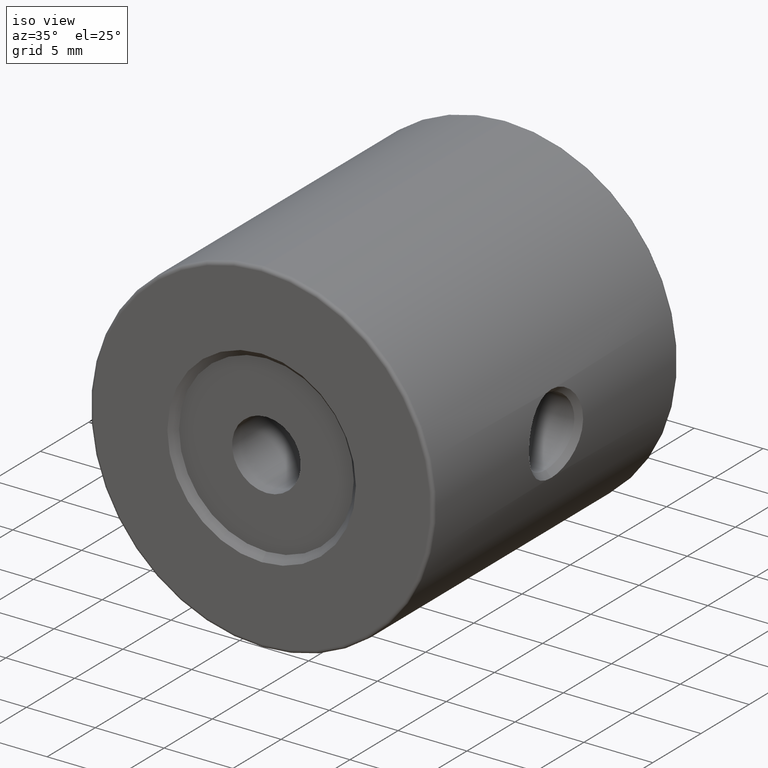
[diagram: clean part render]
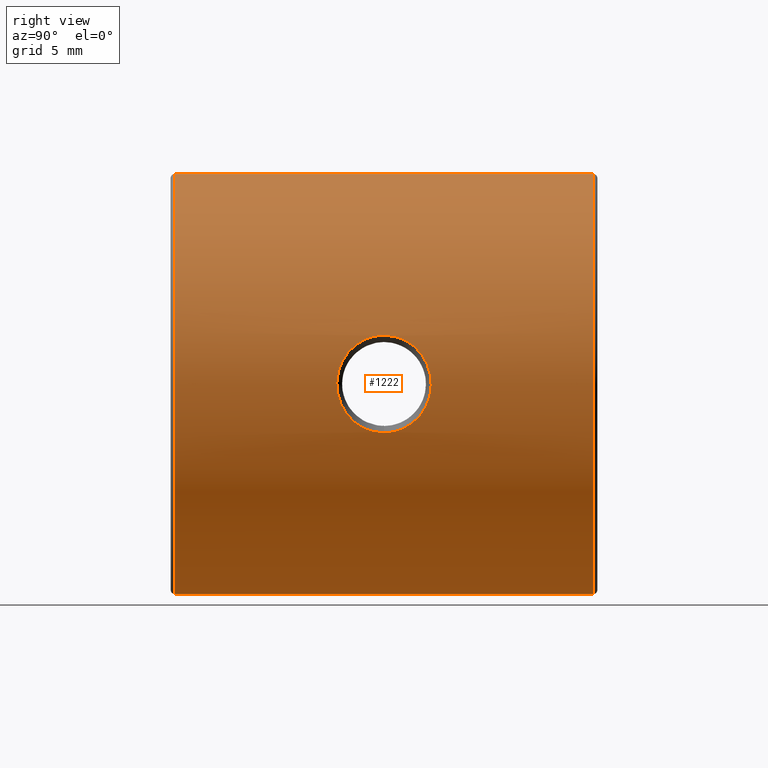
[diagram: tour spotlight — one face highlighted and labeled with its STEP entity id]
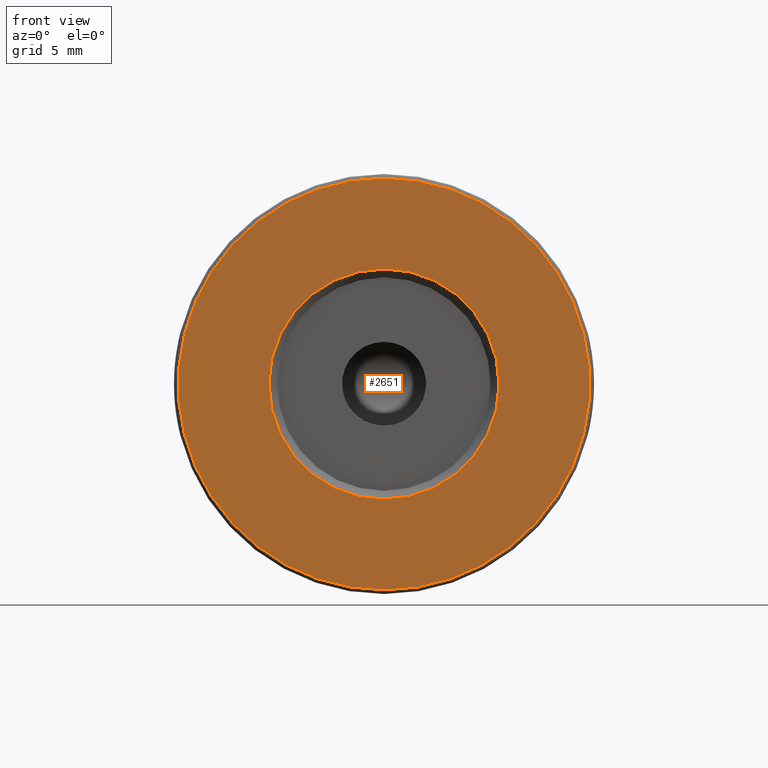
[diagram: tour spotlight — one face highlighted and labeled with its STEP entity id]
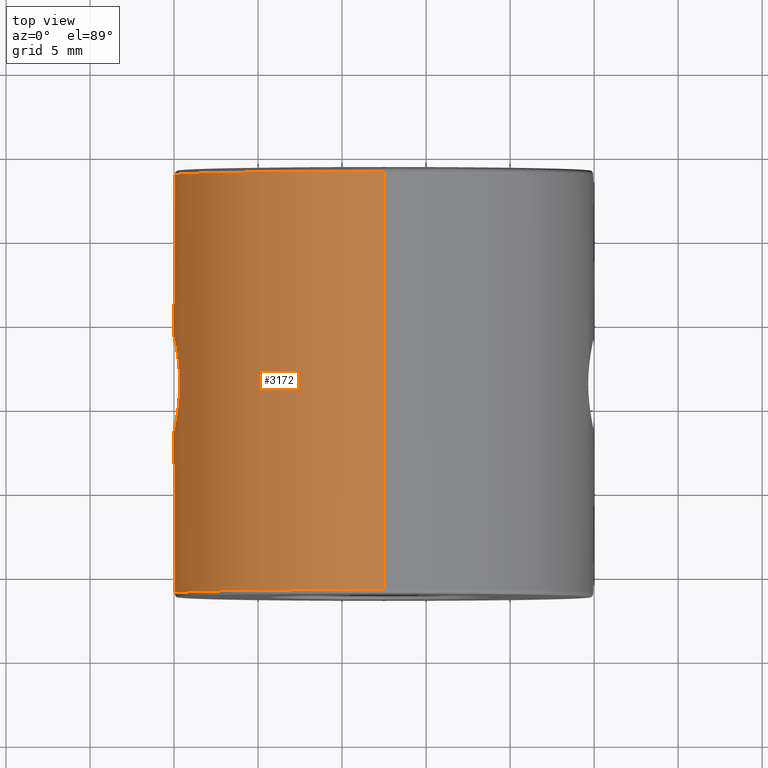
[diagram: tour spotlight — one face highlighted and labeled with its STEP entity id]
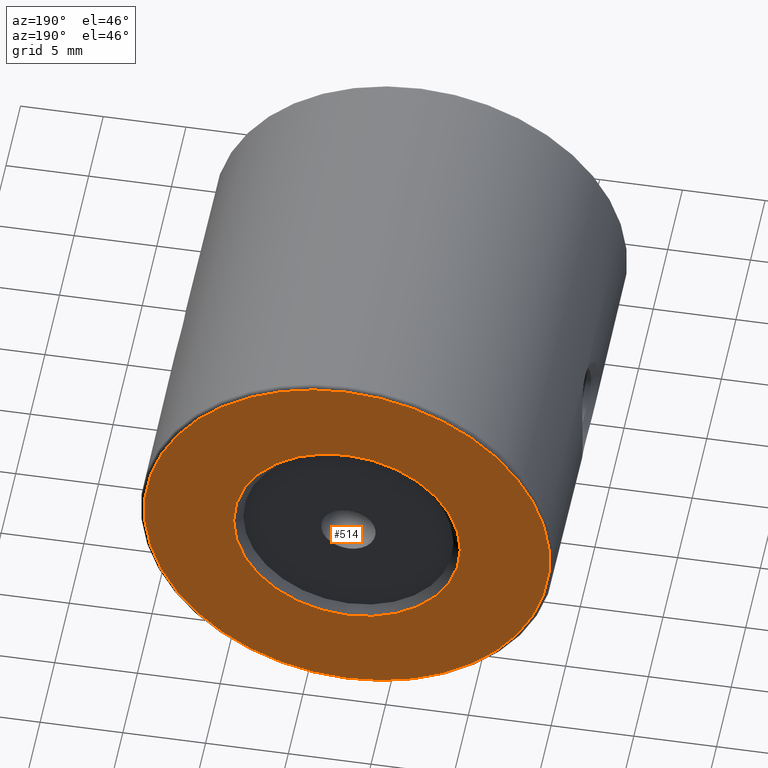
[diagram: tour spotlight — one face highlighted and labeled with its STEP entity id]
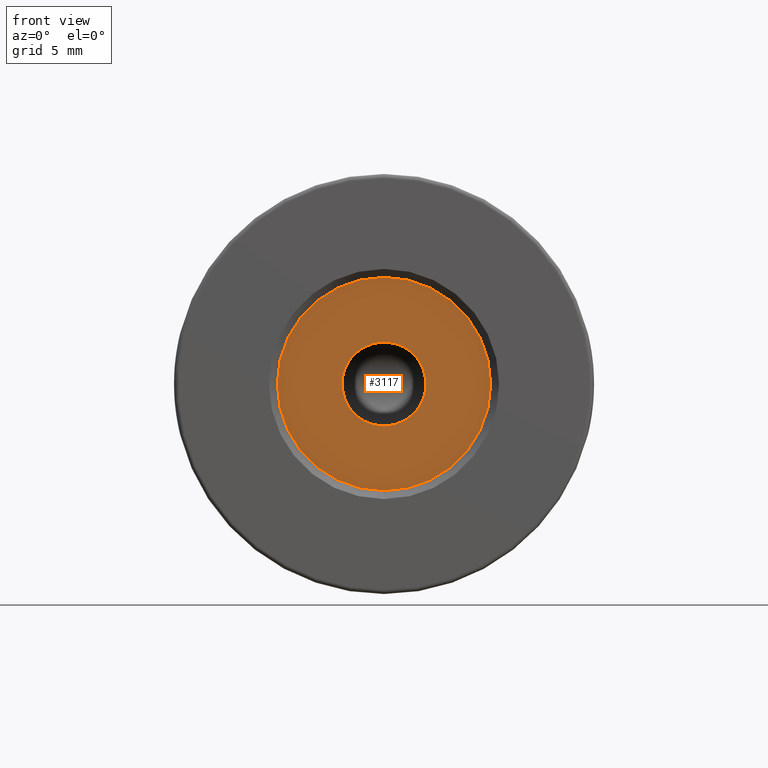
[diagram: tour spotlight — one face highlighted and labeled with its STEP entity id]
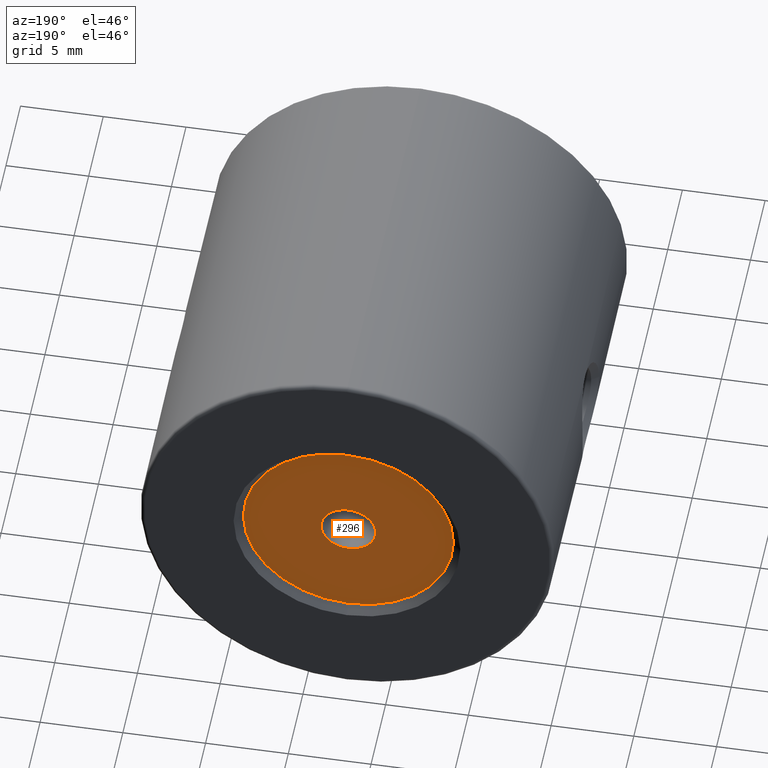
[diagram: tour spotlight — one face highlighted and labeled with its STEP entity id]
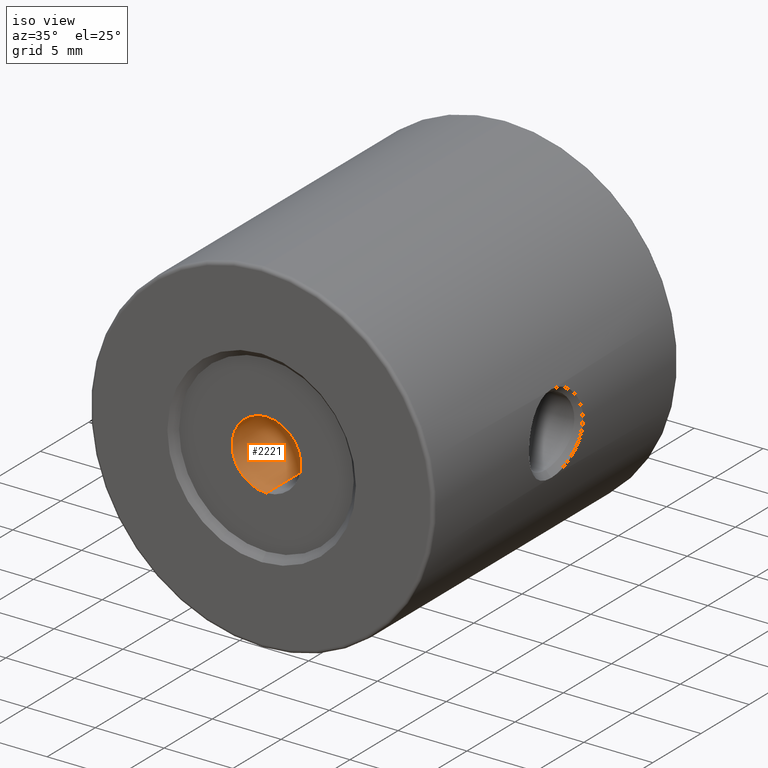
[diagram: tour spotlight — one face highlighted and labeled with its STEP entity id]
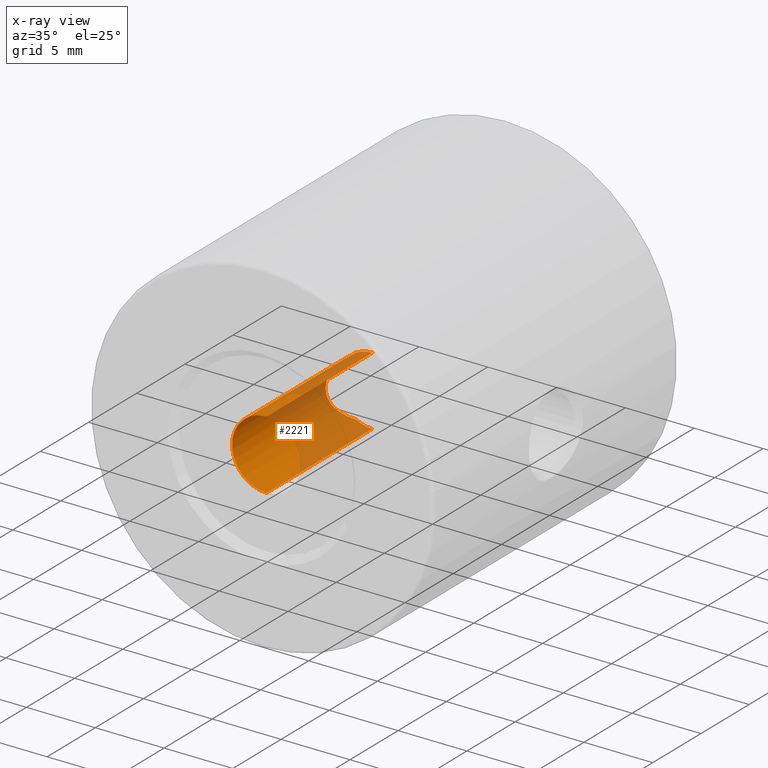
[diagram: x-ray of the same camera — body ghosted, this tour face saturated]
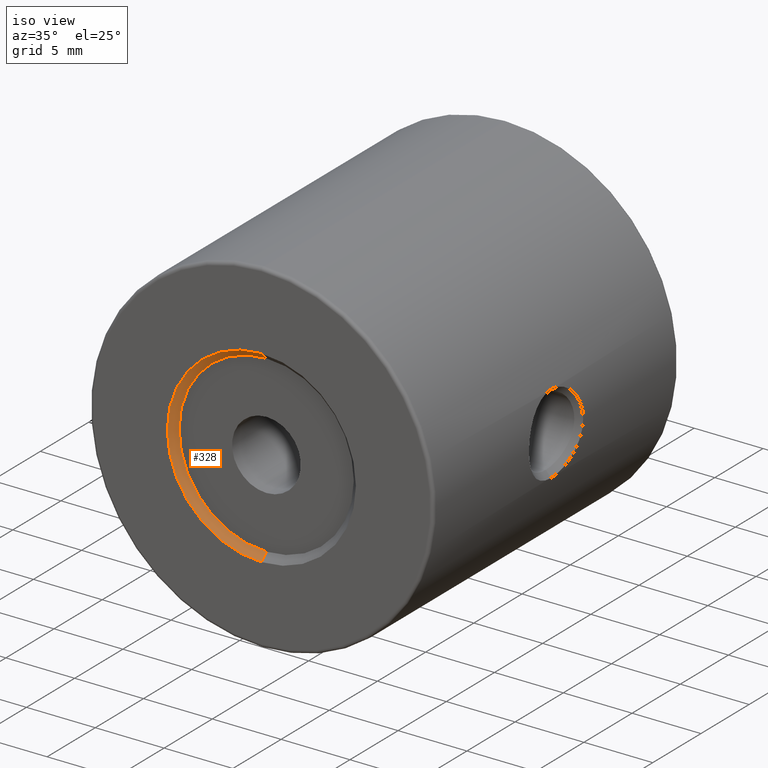
[diagram: tour spotlight — one face highlighted and labeled with its STEP entity id]
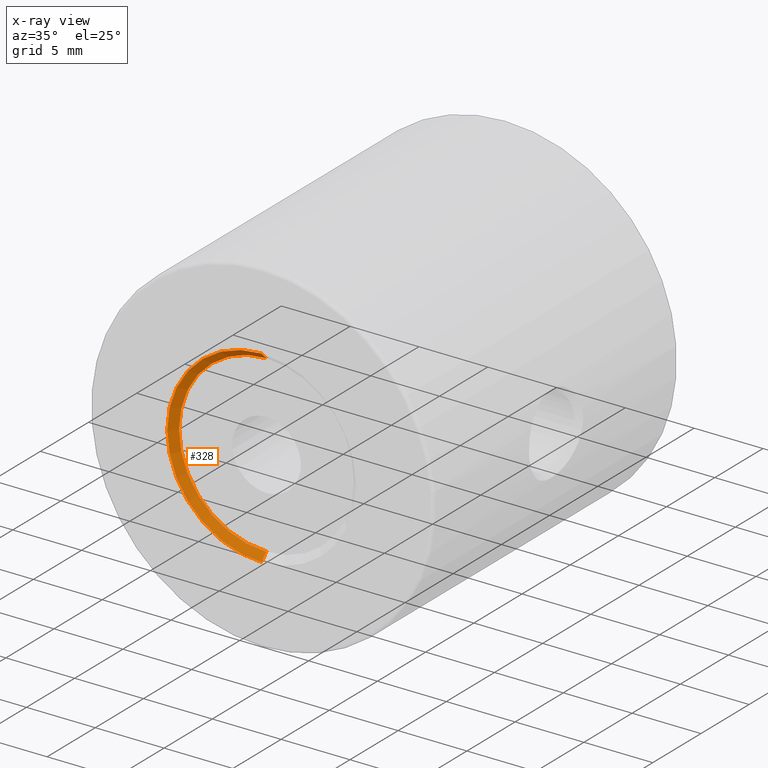
[diagram: x-ray of the same camera — body ghosted, this tour face saturated]
A machine part: a face-by-face anatomy tour. The part has 24 B-rep faces; the first image is the clean iso view, then the 8 largest visible faces are spotlighted one at a time (largest first), each with its STEP entity span.

Face 1 — right view, entity #1222. In plain terms, the highlighted cylindrical surface (partial cylindrical patch) has radius 12.5 mm, axis along (-0, -1, -0).
Definition (entity closure, byte-faithful):
#32 = CARTESIAN_POINT ( 'NONE',  ( -10.08992494498988535, -1.039449521857407355, 51.46152594154579418 ) ) ;
#41 = EDGE_CURVE ( 'NONE', #3260, #1870, #1721, .T. ) ;
#65 = CARTESIAN_POINT ( 'NONE',  ( -10.01393814977554797, -1.376641194411515556, 50.47655221270620274 ) ) ;
#104 = VERTEX_POINT ( 'NONE', #1224 ) ;
#144 = CARTESIAN_POINT ( 'NONE',  ( -10.26240494945894000, 2.806784448246928854, 47.47501714753182966 ) ) ;
#210 = VECTOR ( 'NONE', #3222, 1000.000000000000000 ) ;
#269 = DIRECTION ( 'NONE',  ( 0.0000000000000000000, 0.0000000000000000000, -1.000000000000000000 ) ) ;
#293 = CARTESIAN_POINT ( 'NONE',  ( -10.22044804822373720, -0.3177678142702611841, 47.68777784862786717 ) ) ;
#315 = CARTESIAN_POINT ( 'NONE',  ( -10.28116133936085674, 2.647623010322249115, 52.61312323642560074 ) ) ;
#330 = CARTESIAN_POINT ( 'NONE',  ( -10.00627837453326130, -1.408621410737826096, 50.18986673001853660 ) ) ;
#332 = VERTEX_POINT ( 'NONE', #363 ) ;
#333 = CARTESIAN_POINT ( 'NONE',  ( -22.50520183104453409, -11.05174781523061078, 62.50000000000000000 ) ) ;
#346 = CARTESIAN_POINT ( 'NONE',  ( -10.34401387725308119, 1.031674240327199454, 52.89084654493456839 ) ) ;
#363 = CARTESIAN_POINT ( 'NONE',  ( -22.50520183104453409, 13.84825218476938780, 37.50000000000000711 ) ) ;
#484 = CARTESIAN_POINT ( 'NONE',  ( -22.50520183104453409, 14.09825218476938780, 50.00000000000000000 ) ) ;
#586 = CARTESIAN_POINT ( 'NONE',  ( -10.32931247818096310, 2.139314989545974210, 52.83196653071708937 ) ) ;
#619 = CARTESIAN_POINT ( 'NONE',  ( -10.19795443141427604, 3.257006472563666044, 52.19097686573262251 ) ) ;
#634 = CARTESIAN_POINT ( 'NONE',  ( -10.28138215996793292, 2.645685024780788375, 47.38584113130661990 ) ) ;
#676 = CARTESIAN_POINT ( 'NONE',  ( -10.08950009457533703, 3.837971256572562773, 51.45792308332195120 ) ) ;
#715 = ORIENTED_EDGE ( 'NONE', *, *, #1010, .T. ) ;
#787 = DIRECTION ( 'NONE',  ( 0.0000000000000000000, 0.0000000000000000000, 1.000000000000000000 ) ) ;
#829 = CARTESIAN_POINT ( 'NONE',  ( -10.00519734990736964, -1.413097615887295433, 49.80982674692142353 ) ) ;
#863 = CARTESIAN_POINT ( 'NONE',  ( -10.08961095990389722, -1.040983855274816738, 48.54098388018915244 ) ) ;
#919 = CARTESIAN_POINT ( 'NONE',  ( -10.13051884921692825, 3.634910052868875585, 51.77268452498278606 ) ) ;
#937 = CARTESIAN_POINT ( 'NONE',  ( -10.00964959996189130, 4.191281611645694127, 49.61735547869272267 ) ) ;
#1010 = EDGE_CURVE ( 'NONE', #332, #3260, #1734, .T. ) ;
#1093 = CARTESIAN_POINT ( 'NONE',  ( -10.02677036316294590, -1.322359924736521641, 49.24218911797847653 ) ) ;
#1114 = CARTESIAN_POINT ( 'NONE',  ( -10.13100719876847222, -0.8359003745280569886, 51.77608148398784493 ) ) ;
#1146 = CARTESIAN_POINT ( 'NONE',  ( -10.13104527352233042, -0.8357329463582594542, 48.22352196541897484 ) ) ;
#1203 = ORIENTED_EDGE ( 'NONE', *, *, #2114, .T. ) ;
#1222 = ADVANCED_FACE ( 'NONE', ( #1608, #2999 ), #1623, .T. ) ;
#1224 = CARTESIAN_POINT ( 'NONE',  ( -10.34847154019206883, 1.401086072872697041, 52.90927974513799370 ) ) ;
#1273 = CARTESIAN_POINT ( 'NONE',  ( -10.34847189391649280, 1.398252184769386730, 47.09071877678783835 ) ) ;
#1360 = CARTESIAN_POINT ( 'NONE',  ( -10.03928546547295930, -1.268904155931891653, 49.06091485622435044 ) ) ;
#1378 = CARTESIAN_POINT ( 'NONE',  ( -10.01064372293419424, -1.390416779112063628, 50.38099164026239407 ) ) ;
#1398 = CARTESIAN_POINT ( 'NONE',  ( -10.19775323581233195, -0.4616773628842262833, 47.81021797968165288 ) ) ;
#1415 = CARTESIAN_POINT ( 'NONE',  ( -10.02675186171657451, -1.322443306126147800, 50.75721055769069778 ) ) ;
#1430 = CARTESIAN_POINT ( 'NONE',  ( -10.22067027172156273, -0.3289239818411984762, 52.32705980215983743 ) ) ;
#1577 = CARTESIAN_POINT ( 'NONE',  ( -22.50520183104453409, 13.84825218476938780, 50.00000000000000000 ) ) ;
#1608 = FACE_BOUND ( 'NONE', #2925, .T. ) ;
#1623 = CYLINDRICAL_SURFACE ( 'NONE', #2996, 12.49999999999999645 ) ;
#1630 = CIRCLE ( 'NONE', #1685, 12.49999999999999645 ) ;
#1635 = CARTESIAN_POINT ( 'NONE',  ( -10.03926934905741319, -1.268979855243106636, 50.93906143870317038 ) ) ;
#1685 = AXIS2_PLACEMENT_3D ( 'NONE', #2096, #3447, #2606 ) ;
#1686 = CARTESIAN_POINT ( 'NONE',  ( -10.00520407681040602, -1.413074357631363132, 50.09552809953441965 ) ) ;
#1702 = CARTESIAN_POINT ( 'NONE',  ( -10.34847189391649280, 1.398252184769386730, 47.09071877678783835 ) ) ;
#1706 = CARTESIAN_POINT ( 'NONE',  ( -10.02657681141465140, 4.119691500577888910, 50.75422238448651768 ) ) ;
#1721 = LINE ( 'NONE', #2550, #3500 ) ;
#1722 = CARTESIAN_POINT ( 'NONE',  ( -10.32961809027781186, 2.135293394413442236, 47.16670927389252910 ) ) ;
#1734 = CIRCLE ( 'NONE', #2820, 12.49999999999999645 ) ;
#1741 = CARTESIAN_POINT ( 'NONE',  ( -10.02677590330328172, 4.118849129149372956, 49.24228715513348931 ) ) ;
#1762 = CARTESIAN_POINT ( 'NONE',  ( -10.22069015971931272, 3.112715133765359798, 47.68647738586923168 ) ) ;
#1870 = VERTEX_POINT ( 'NONE', #333 ) ;
#1902 = CARTESIAN_POINT ( 'NONE',  ( -10.34839696664154651, 1.768149378122014337, 52.90896813174224889 ) ) ;
#1946 = CARTESIAN_POINT ( 'NONE',  ( -10.32954370539406241, 0.6599845766455595397, 47.16701032394627191 ) ) ;
#1963 = CARTESIAN_POINT ( 'NONE',  ( -10.31357678706446990, 0.4914312575477974843, 52.76042022120675767 ) ) ;
#1968 = CARTESIAN_POINT ( 'NONE',  ( -10.34848894705066158, 1.765824933951817499, 47.09064751851791897 ) ) ;
#1985 = CARTESIAN_POINT ( 'NONE',  ( -10.26171685815567258, 2.812244921909722972, 52.52163236096716048 ) ) ;
#2023 = DIRECTION ( 'NONE',  ( -0.0000000000000000000, -1.000000000000000000, -0.0000000000000000000 ) ) ;
#2024 = CARTESIAN_POINT ( 'NONE',  ( -10.13120772189613561, 3.643678481367692346, 48.20895563094915559 ) ) ;
#2096 = CARTESIAN_POINT ( 'NONE',  ( -22.50520183104453409, -11.05174781523061078, 50.00000000000000000 ) ) ;
#2114 = EDGE_CURVE ( 'NONE', #104, #3358, #2335, .T. ) ;
#2171 = CARTESIAN_POINT ( 'NONE',  ( -10.34847154019206883, 1.401086072872697041, 52.90927974513799370 ) ) ;
#2203 = CARTESIAN_POINT ( 'NONE',  ( -10.07065230752212415, -1.128473363231503823, 48.71045361163163534 ) ) ;
#2227 = EDGE_CURVE ( 'NONE', #3358, #104, #2635, .T. ) ;
#2237 = CARTESIAN_POINT ( 'NONE',  ( -10.15310274899029785, -0.7201770142831787069, 51.92207674295863029 ) ) ;
#2277 = CARTESIAN_POINT ( 'NONE',  ( -10.15294739807548474, 3.517539804964871841, 51.92107485670855027 ) ) ;
#2320 = CARTESIAN_POINT ( 'NONE',  ( -10.07078360413201601, 3.924386101539597327, 51.29104044065864798 ) ) ;
#2335 = B_SPLINE_CURVE_WITH_KNOTS ( 'NONE', 3,
 ( #2171, #1902, #586, #315, #1985, #3062, #619, #2277, #919, #676, #2320, #3359, #1706, #3399, #3136, #3379, #2797, #2610, #937, #1741, #3078, #2570, #2024, #3116, #1762, #144, #634, #1722, #1968, #2551 ),
 .UNSPECIFIED., .F., .F.,
 ( 4, 2, 2, 2, 2, 2, 2, 2, 2, 2, 2, 2, 2, 2, 4 ),
 ( 0.5000000000000000000, 0.5624999999999991118, 0.5937499999999985567, 0.6249999999999980016, 0.6562499999999975575, 0.6874999999999971134, 0.7187499999999965583, 0.7343749999999963363, 0.7499999999999960032, 0.7812499999999966693, 0.8124999999999973355, 0.8749999999999985567, 0.9062499999999987788, 0.9374999999999991118, 1.000000000000000000 ),
 .UNSPECIFIED. ) ;
#2372 = CARTESIAN_POINT ( 'NONE',  ( -22.50520183104453409, 14.09825218476938780, 37.50000000000000711 ) ) ;
#2401 = DIRECTION ( 'NONE',  ( -0.0000000000000000000, -1.000000000000000000, -0.0000000000000000000 ) ) ;
#2406 = DIRECTION ( 'NONE',  ( -0.0000000000000000000, -1.000000000000000000, -0.0000000000000000000 ) ) ;
#2472 = CARTESIAN_POINT ( 'NONE',  ( -10.07084455742828766, -1.127609090095747391, 51.29153715517114875 ) ) ;
#2526 = CARTESIAN_POINT ( 'NONE',  ( -10.34850882696732910, 1.217554420248038616, 52.90943555183586255 ) ) ;
#2550 = CARTESIAN_POINT ( 'NONE',  ( -22.50520183104453409, 14.09825218476938780, 62.50000000000000000 ) ) ;
#2551 = CARTESIAN_POINT ( 'NONE',  ( -10.34847189391649280, 1.398252184769386730, 47.09071877678783835 ) ) ;
#2570 = CARTESIAN_POINT ( 'NONE',  ( -10.08673579312213775, 3.852910402522478961, 48.53189826277798602 ) ) ;
#2606 = DIRECTION ( 'NONE',  ( 0.0000000000000000000, 0.0000000000000000000, 1.000000000000000000 ) ) ;
#2610 = CARTESIAN_POINT ( 'NONE',  ( -10.00523732347764039, 4.209438793488014419, 49.80666152468578645 ) ) ;
#2613 = EDGE_LOOP ( 'NONE', ( #715, #2852, #3228, #3510 ) ) ;
#2635 = B_SPLINE_CURVE_WITH_KNOTS ( 'NONE', 3,
 ( #1702, #2992, #1946, #2742, #3305, #293, #1398, #3041, #1146, #863, #2203, #1360, #1093, #3273, #829, #1686, #330, #1378, #65, #1415, #1635, #2472, #32, #1114, #2237, #1430, #3320, #1963, #2792, #346, #2526, #2725 ),
 .UNSPECIFIED., .F., .F.,
 ( 4, 2, 2, 2, 2, 2, 2, 2, 2, 2, 2, 2, 2, 2, 2, 4 ),
 ( 0.0000000000000000000, 0.06250000000000273392, 0.09375000000000387190, 0.1250000000000049960, 0.1562500000000061340, 0.1875000000000072720, 0.2187500000000084377, 0.2500000000000095479, 0.2656250000000095479, 0.2812500000000096034, 0.3125000000000084377, 0.3437500000000073275, 0.3750000000000061617, 0.4375000000000031086, 0.4687500000000015543, 0.5000000000000000000 ),
 .UNSPECIFIED. ) ;
#2643 = LINE ( 'NONE', #2372, #210 ) ;
#2725 = CARTESIAN_POINT ( 'NONE',  ( -10.34847154019206883, 1.401086072872697041, 52.90927974513799370 ) ) ;
#2742 = CARTESIAN_POINT ( 'NONE',  ( -10.28120580034535969, 0.1491743863010827620, 47.38666087815087735 ) ) ;
#2792 = CARTESIAN_POINT ( 'NONE',  ( -10.32641410112893254, 0.6672506221503179402, 52.81577975407518011 ) ) ;
#2797 = CARTESIAN_POINT ( 'NONE',  ( -10.00518440457559421, 4.209659017144813831, 50.09320650240213979 ) ) ;
#2820 = AXIS2_PLACEMENT_3D ( 'NONE', #1577, #2406, #787 ) ;
#2852 = ORIENTED_EDGE ( 'NONE', *, *, #41, .T. ) ;
#2925 = EDGE_LOOP ( 'NONE', ( #3012, #1203 ) ) ;
#2940 = EDGE_CURVE ( 'NONE', #1870, #3077, #1630, .T. ) ;
#2992 = CARTESIAN_POINT ( 'NONE',  ( -10.34845463298328561, 1.026200419310081324, 47.09079090336735618 ) ) ;
#2996 = AXIS2_PLACEMENT_3D ( 'NONE', #484, #2401, #269 ) ;
#2999 = FACE_OUTER_BOUND ( 'NONE', #2613, .T. ) ;
#3012 = ORIENTED_EDGE ( 'NONE', *, *, #2227, .T. ) ;
#3041 = CARTESIAN_POINT ( 'NONE',  ( -10.15309026960082939, -0.7201977724898146471, 48.07808007595491517 ) ) ;
#3062 = CARTESIAN_POINT ( 'NONE',  ( -10.22016270266414395, 3.116156845048652979, 52.31070717733658881 ) ) ;
#3077 = VERTEX_POINT ( 'NONE', #3481 ) ;
#3078 = CARTESIAN_POINT ( 'NONE',  ( -10.03956905278077905, 4.064168843830813671, 49.05718252087540066 ) ) ;
#3116 = CARTESIAN_POINT ( 'NONE',  ( -10.19821154778434469, 3.255369150865154992, 47.80765360765541061 ) ) ;
#3136 = CARTESIAN_POINT ( 'NONE',  ( -10.01064152821728115, 4.186927187746610990, 50.38093568510159059 ) ) ;
#3222 = DIRECTION ( 'NONE',  ( -0.0000000000000000000, -1.000000000000000000, -0.0000000000000000000 ) ) ;
#3228 = ORIENTED_EDGE ( 'NONE', *, *, #2940, .T. ) ;
#3231 = EDGE_CURVE ( 'NONE', #332, #3077, #2643, .T. ) ;
#3260 = VERTEX_POINT ( 'NONE', #3431 ) ;
#3273 = CARTESIAN_POINT ( 'NONE',  ( -10.00959453157036627, -1.395018423938570118, 49.61878162576346796 ) ) ;
#3305 = CARTESIAN_POINT ( 'NONE',  ( -10.26201457399603889, -0.01335821454854821053, 47.47692398634699629 ) ) ;
#3320 = CARTESIAN_POINT ( 'NONE',  ( -10.26514075146438643, -0.02094479333985894975, 52.54036784949408911 ) ) ;
#3358 = VERTEX_POINT ( 'NONE', #1273 ) ;
#3359 = CARTESIAN_POINT ( 'NONE',  ( -10.03912386685051317, 4.066135811464546279, 50.93725250163796403 ) ) ;
#3379 = CARTESIAN_POINT ( 'NONE',  ( -10.00627509750832544, 4.205142563663890165, 50.18968306952496761 ) ) ;
#3399 = CARTESIAN_POINT ( 'NONE',  ( -10.01384831664533159, 4.173523746005879609, 50.47415274411842034 ) ) ;
#3431 = CARTESIAN_POINT ( 'NONE',  ( -22.50520183104453409, 13.84825218476938780, 62.50000000000000000 ) ) ;
#3447 = DIRECTION ( 'NONE',  ( 0.0000000000000000000, 1.000000000000000000, 0.0000000000000000000 ) ) ;
#3481 = CARTESIAN_POINT ( 'NONE',  ( -22.50520183104453409, -11.05174781523061078, 37.50000000000000711 ) ) ;
#3500 = VECTOR ( 'NONE', #2023, 1000.000000000000000 ) ;
#3510 = ORIENTED_EDGE ( 'NONE', *, *, #3231, .F. ) ;

Face 2 — front view, entity #2651. In plain terms, the highlighted planar face has unit normal (0, 1, 0).
Definition (entity closure, byte-faithful):
#75 = FACE_OUTER_BOUND ( 'NONE', #2994, .T. ) ;
#221 = EDGE_CURVE ( 'NONE', #1433, #522, #1852, .T. ) ;
#316 = AXIS2_PLACEMENT_3D ( 'NONE', #3098, #1783, #2026 ) ;
#350 = ORIENTED_EDGE ( 'NONE', *, *, #221, .T. ) ;
#375 = DIRECTION ( 'NONE',  ( 0.0000000000000000000, 1.000000000000000000, 0.0000000000000000000 ) ) ;
#488 = CIRCLE ( 'NONE', #881, 6.850000000000002309 ) ;
#522 = VERTEX_POINT ( 'NONE', #2037 ) ;
#548 = CARTESIAN_POINT ( 'NONE',  ( -22.50520183104453409, -11.30174781523061078, 43.14999999999999858 ) ) ;
#618 = ORIENTED_EDGE ( 'NONE', *, *, #774, .T. ) ;
#774 = EDGE_CURVE ( 'NONE', #2170, #1296, #488, .T. ) ;
#881 = AXIS2_PLACEMENT_3D ( 'NONE', #2904, #3411, #1270 ) ;
#918 = ORIENTED_EDGE ( 'NONE', *, *, #2572, .T. ) ;
#939 = CIRCLE ( 'NONE', #316, 6.850000000000002309 ) ;
#943 = FACE_BOUND ( 'NONE', #2530, .T. ) ;
#1005 = AXIS2_PLACEMENT_3D ( 'NONE', #3345, #1422, #2518 ) ;
#1056 = CIRCLE ( 'NONE', #1005, 12.24999999999999645 ) ;
#1270 = DIRECTION ( 'NONE',  ( 0.0000000000000000000, 0.0000000000000000000, 1.000000000000000000 ) ) ;
#1296 = VERTEX_POINT ( 'NONE', #1316 ) ;
#1316 = CARTESIAN_POINT ( 'NONE',  ( -22.50520183104453409, -11.30174781523061078, 56.85000000000000142 ) ) ;
#1422 = DIRECTION ( 'NONE',  ( -0.0000000000000000000, -1.000000000000000000, -0.0000000000000000000 ) ) ;
#1433 = VERTEX_POINT ( 'NONE', #3381 ) ;
#1472 = DIRECTION ( 'NONE',  ( -0.0000000000000000000, -1.000000000000000000, -0.0000000000000000000 ) ) ;
#1497 = DIRECTION ( 'NONE',  ( 0.0000000000000000000, -0.0000000000000000000, 1.000000000000000000 ) ) ;
#1563 = EDGE_CURVE ( 'NONE', #1296, #2170, #939, .T. ) ;
#1625 = AXIS2_PLACEMENT_3D ( 'NONE', #2834, #1472, #2569 ) ;
#1783 = DIRECTION ( 'NONE',  ( 0.0000000000000000000, 1.000000000000000000, 0.0000000000000000000 ) ) ;
#1852 = CIRCLE ( 'NONE', #1625, 12.24999999999999645 ) ;
#1988 = CARTESIAN_POINT ( 'NONE',  ( -22.50520183104453409, -11.30174781523061078, 50.00000000000000000 ) ) ;
#2026 = DIRECTION ( 'NONE',  ( 0.0000000000000000000, 0.0000000000000000000, 1.000000000000000000 ) ) ;
#2037 = CARTESIAN_POINT ( 'NONE',  ( -22.50520183104453409, -11.30174781523061078, 62.25000000000000000 ) ) ;
#2170 = VERTEX_POINT ( 'NONE', #548 ) ;
#2518 = DIRECTION ( 'NONE',  ( 0.0000000000000000000, 0.0000000000000000000, 1.000000000000000000 ) ) ;
#2530 = EDGE_LOOP ( 'NONE', ( #618, #3419 ) ) ;
#2569 = DIRECTION ( 'NONE',  ( 0.0000000000000000000, 0.0000000000000000000, 1.000000000000000000 ) ) ;
#2572 = EDGE_CURVE ( 'NONE', #522, #1433, #1056, .T. ) ;
#2575 = PLANE ( 'NONE',  #3107 ) ;
#2651 = ADVANCED_FACE ( 'NONE', ( #75, #943 ), #2575, .F. ) ;
#2834 = CARTESIAN_POINT ( 'NONE',  ( -22.50520183104453409, -11.30174781523061078, 50.00000000000000000 ) ) ;
#2904 = CARTESIAN_POINT ( 'NONE',  ( -22.50520183104453409, -11.30174781523061078, 50.00000000000000000 ) ) ;
#2994 = EDGE_LOOP ( 'NONE', ( #918, #350 ) ) ;
#3098 = CARTESIAN_POINT ( 'NONE',  ( -22.50520183104453409, -11.30174781523061078, 50.00000000000000000 ) ) ;
#3107 = AXIS2_PLACEMENT_3D ( 'NONE', #1988, #375, #1497 ) ;
#3345 = CARTESIAN_POINT ( 'NONE',  ( -22.50520183104453409, -11.30174781523061078, 50.00000000000000000 ) ) ;
#3381 = CARTESIAN_POINT ( 'NONE',  ( -22.50520183104453409, -11.30174781523061078, 37.75000000000000711 ) ) ;
#3411 = DIRECTION ( 'NONE',  ( 0.0000000000000000000, 1.000000000000000000, 0.0000000000000000000 ) ) ;
#3419 = ORIENTED_EDGE ( 'NONE', *, *, #1563, .T. ) ;

Face 3 — top view, entity #3172. In plain terms, the highlighted cylindrical surface (partial cylindrical patch) has radius 12.5 mm, axis along (-0, -1, -0).
Definition (entity closure, byte-faithful):
#37 = FACE_BOUND ( 'NONE', #2945, .T. ) ;
#41 = EDGE_CURVE ( 'NONE', #3260, #1870, #1721, .T. ) ;
#70 = CARTESIAN_POINT ( 'NONE',  ( -34.98275065809032469, -1.318488312190479794, 50.75447521938713180 ) ) ;
#93 = CARTESIAN_POINT ( 'NONE',  ( -34.72905683927813669, 2.646135917091632095, 52.61400507405517857 ) ) ;
#109 = CARTESIAN_POINT ( 'NONE',  ( -34.85705643050175695, 3.515358686877432248, 51.92363226177521085 ) ) ;
#129 = CARTESIAN_POINT ( 'NONE',  ( -34.92002400583636756, 3.832124608329903648, 51.45923812918746876 ) ) ;
#162 = CARTESIAN_POINT ( 'NONE',  ( -34.97116716007145953, 4.065639543320874516, 49.06127516942770228 ) ) ;
#179 = CARTESIAN_POINT ( 'NONE',  ( -34.79001590680803702, -0.3182597613877000131, 47.68806332060728437 ) ) ;
#185 = ORIENTED_EDGE ( 'NONE', *, *, #3231, .T. ) ;
#195 = CARTESIAN_POINT ( 'NONE',  ( -35.00524692301914342, 4.209770318072258100, 49.81270652713435965 ) ) ;
#210 = VECTOR ( 'NONE', #3222, 1000.000000000000000 ) ;
#227 = CARTESIAN_POINT ( 'NONE',  ( -34.74815230532298926, -0.01157353952811793901, 47.47574332328041891 ) ) ;
#265 = CARTESIAN_POINT ( 'NONE',  ( -34.97029888078100157, -1.264562310686236035, 50.93798354390285965 ) ) ;
#281 = EDGE_LOOP ( 'NONE', ( #1876, #2654, #185, #464 ) ) ;
#282 = CARTESIAN_POINT ( 'NONE',  ( -34.66191919043989600, 1.488437803989572705, 52.90933378057250280 ) ) ;
#299 = FACE_OUTER_BOUND ( 'NONE', #281, .T. ) ;
#332 = VERTEX_POINT ( 'NONE', #363 ) ;
#333 = CARTESIAN_POINT ( 'NONE',  ( -22.50520183104453409, -11.05174781523061078, 62.50000000000000000 ) ) ;
#363 = CARTESIAN_POINT ( 'NONE',  ( -22.50520183104453409, 13.84825218476938780, 37.50000000000000711 ) ) ;
#376 = CARTESIAN_POINT ( 'NONE',  ( -35.00511057740315124, 4.209214405480422805, 50.38354389346378781 ) ) ;
#411 = CARTESIAN_POINT ( 'NONE',  ( -22.50520183104453409, -11.05174781523061078, 50.00000000000000000 ) ) ;
#440 = CARTESIAN_POINT ( 'NONE',  ( -34.66193446152058044, 1.214990703612172762, 47.09073003121878287 ) ) ;
#464 = ORIENTED_EDGE ( 'NONE', *, *, #2746, .T. ) ;
#494 = CARTESIAN_POINT ( 'NONE',  ( -35.00520183104453764, -1.413082124769261982, 50.00000000000000000 ) ) ;
#511 = CARTESIAN_POINT ( 'NONE',  ( -34.68404829437856307, 2.129844607697015224, 47.18447624015637132 ) ) ;
#533 = CARTESIAN_POINT ( 'NONE',  ( -34.68406788086937809, 0.6663276252035708058, 52.81543937149059076 ) ) ;
#552 = CARTESIAN_POINT ( 'NONE',  ( -34.66652474597602662, 1.028189448967896436, 52.89027716194794237 ) ) ;
#570 = CARTESIAN_POINT ( 'NONE',  ( -34.66304078550321321, 1.581811714230838328, 52.90465927043067040 ) ) ;
#602 = CARTESIAN_POINT ( 'NONE',  ( -34.93964974344271468, -1.128013625743270243, 51.29060020601443881 ) ) ;
#661 = CARTESIAN_POINT ( 'NONE',  ( -34.98663707284359958, 4.134943201854009764, 50.76675213544088194 ) ) ;
#743 = CARTESIAN_POINT ( 'NONE',  ( -34.68408990658843294, 0.6657967389016038462, 47.18465315096450041 ) ) ;
#765 = CARTESIAN_POINT ( 'NONE',  ( -35.00520183104453764, -1.413082124769261982, 50.00000000000000000 ) ) ;
#772 = CARTESIAN_POINT ( 'NONE',  ( -34.69688201949560380, 0.4909844491544618772, 47.23984144478920655 ) ) ;
#824 = AXIS2_PLACEMENT_3D ( 'NONE', #1906, #2983, #1049 ) ;
#827 = AXIS2_PLACEMENT_3D ( 'NONE', #411, #888, #905 ) ;
#833 = CARTESIAN_POINT ( 'NONE',  ( -34.85728882726728983, -0.7200549649620916481, 51.92206626472201947 ) ) ;
#849 = CARTESIAN_POINT ( 'NONE',  ( -34.96325857829892669, -1.233718698005942471, 51.02694110184872045 ) ) ;
#867 = CARTESIAN_POINT ( 'NONE',  ( -34.67081540850387000, 1.856390161466473288, 52.87196965017534467 ) ) ;
#888 = DIRECTION ( 'NONE',  ( 0.0000000000000000000, 1.000000000000000000, 0.0000000000000000000 ) ) ;
#905 = DIRECTION ( 'NONE',  ( 0.0000000000000000000, 0.0000000000000000000, 1.000000000000000000 ) ) ;
#923 = CARTESIAN_POINT ( 'NONE',  ( -34.93867267744749938, 3.919447845713823320, 51.29073167661783117 ) ) ;
#993 = CARTESIAN_POINT ( 'NONE',  ( -34.85689439158556979, -0.7179281710429463725, 48.07538743318192331 ) ) ;
#1027 = CARTESIAN_POINT ( 'NONE',  ( -34.81216474023873531, -0.4587072315673798029, 47.80748851902740171 ) ) ;
#1042 = CARTESIAN_POINT ( 'NONE',  ( -34.74847621066616910, 2.810539836560126403, 47.47735429478797897 ) ) ;
#1049 = DIRECTION ( 'NONE',  ( 0.0000000000000000000, 0.0000000000000000000, 1.000000000000000000 ) ) ;
#1081 = CARTESIAN_POINT ( 'NONE',  ( -35.00520147448047226, 4.209585013874979076, 50.00298564924417377 ) ) ;
#1113 = EDGE_CURVE ( 'NONE', #3260, #332, #1512, .T. ) ;
#1120 = CYLINDRICAL_SURFACE ( 'NONE', #3279, 12.49999999999999645 ) ;
#1189 = CARTESIAN_POINT ( 'NONE',  ( -34.81205133253924089, 3.254567286151582195, 52.19320050889898965 ) ) ;
#1209 = CARTESIAN_POINT ( 'NONE',  ( -34.91000489703898069, 3.784083020720691692, 51.54180631078440911 ) ) ;
#1242 = CARTESIAN_POINT ( 'NONE',  ( -34.98371482563916857, 4.119216514431521148, 49.24348063882587212 ) ) ;
#1272 = CARTESIAN_POINT ( 'NONE',  ( -34.87974277257065836, 3.646729404390751217, 48.21237859112503799 ) ) ;
#1292 = CARTESIAN_POINT ( 'NONE',  ( -35.00520147448047226, 4.209585013874979076, 50.00298564924417377 ) ) ;
#1308 = CARTESIAN_POINT ( 'NONE',  ( -34.92056304550112600, -1.039858968507632264, 48.53915210879905118 ) ) ;
#1347 = CARTESIAN_POINT ( 'NONE',  ( -35.00520183104453764, -1.413082124769261982, 50.00000000000000000 ) ) ;
#1362 = VERTEX_POINT ( 'NONE', #765 ) ;
#1418 = CARTESIAN_POINT ( 'NONE',  ( -34.66752058121687696, 1.766213776379284672, 52.88584409472477432 ) ) ;
#1478 = CARTESIAN_POINT ( 'NONE',  ( -35.00520147448047226, 4.209585013874979076, 50.00298564924417377 ) ) ;
#1512 = CIRCLE ( 'NONE', #824, 12.49999999999999645 ) ;
#1541 = CARTESIAN_POINT ( 'NONE',  ( -35.00520183104453764, -1.413082089048387058, 49.61579498174210556 ) ) ;
#1579 = CARTESIAN_POINT ( 'NONE',  ( -34.72905173131964318, 2.645954824932969629, 47.38598351052181101 ) ) ;
#1620 = CARTESIAN_POINT ( 'NONE',  ( -34.69719134326543752, 0.4871785545084092450, 52.75879586371009822 ) ) ;
#1638 = CARTESIAN_POINT ( 'NONE',  ( -35.00520183104452343, -1.413082142476717706, 50.19045706908695337 ) ) ;
#1673 = CARTESIAN_POINT ( 'NONE',  ( -34.79013651511292693, -0.3190703824306396763, 52.31129705540776342 ) ) ;
#1721 = LINE ( 'NONE', #2550, #3500 ) ;
#1742 = EDGE_CURVE ( 'NONE', #2086, #1362, #2154, .T. ) ;
#1870 = VERTEX_POINT ( 'NONE', #333 ) ;
#1876 = ORIENTED_EDGE ( 'NONE', *, *, #41, .F. ) ;
#1906 = CARTESIAN_POINT ( 'NONE',  ( -22.50520183104453409, 13.84825218476938780, 50.00000000000000000 ) ) ;
#1919 = CARTESIAN_POINT ( 'NONE',  ( -34.74827243124121168, -0.01252608439648575205, 52.52367520667039713 ) ) ;
#1934 = CARTESIAN_POINT ( 'NONE',  ( -34.98808031034191401, -1.341176413144572033, 50.66066995145455820 ) ) ;
#1950 = CARTESIAN_POINT ( 'NONE',  ( -34.92091958336806812, -1.041568019898952313, 51.45788940177170900 ) ) ;
#1981 = CARTESIAN_POINT ( 'NONE',  ( -22.50520183104453409, 14.09825218476938780, 50.00000000000000000 ) ) ;
#2023 = DIRECTION ( 'NONE',  ( -0.0000000000000000000, -1.000000000000000000, -0.0000000000000000000 ) ) ;
#2059 = CARTESIAN_POINT ( 'NONE',  ( -34.87939741778114211, -0.8359134743064738915, 48.22389352012683617 ) ) ;
#2078 = CARTESIAN_POINT ( 'NONE',  ( -34.66192908598773670, 1.582225631726113413, 47.09070756900332100 ) ) ;
#2086 = VERTEX_POINT ( 'NONE', #1081 ) ;
#2129 = CARTESIAN_POINT ( 'NONE',  ( -34.66651604185567237, 1.768063399752779485, 47.10968654197657912 ) ) ;
#2154 = B_SPLINE_CURVE_WITH_KNOTS ( 'NONE', 3,
 ( #1478, #376, #661, #2556, #923, #129, #1209, #3384, #109, #1189, #2281, #3363, #93, #2264, #3346, #867, #1418, #570, #282, #2995, #552, #533, #1620, #3278, #1919, #1673, #3308, #833, #2713, #1950, #602, #849, #265, #70, #1934, #2745, #1638, #1347 ),
 .UNSPECIFIED., .F., .F.,
 ( 4, 2, 2, 2, 2, 2, 2, 2, 2, 2, 2, 2, 2, 2, 2, 2, 2, 2, 4 ),
 ( 0.5000000000000000000, 0.5625000000000025535, 0.5781250000000028866, 0.5937500000000033307, 0.6250000000000029976, 0.6562500000000027756, 0.6875000000000024425, 0.7187500000000022204, 0.7343750000000019984, 0.7500000000000017764, 0.7812500000000012212, 0.8125000000000006661, 0.8437500000000002220, 0.8749999999999997780, 0.9062499999999993339, 0.9374999999999987788, 0.9531249999999991118, 0.9687499999999993339, 1.000000000000000000 ),
 .UNSPECIFIED. ) ;
#2208 = DIRECTION ( 'NONE',  ( -0.0000000000000000000, -1.000000000000000000, -0.0000000000000000000 ) ) ;
#2264 = CARTESIAN_POINT ( 'NONE',  ( -34.69672515564799653, 2.303875218906213718, 52.76087174913163835 ) ) ;
#2281 = CARTESIAN_POINT ( 'NONE',  ( -34.78950233570082418, 3.111229001524634885, 52.31461547241717369 ) ) ;
#2371 = CARTESIAN_POINT ( 'NONE',  ( -34.72889004347043596, 0.1521183056196871164, 47.38523661629316308 ) ) ;
#2372 = CARTESIAN_POINT ( 'NONE',  ( -22.50520183104453409, 14.09825218476938780, 37.50000000000000711 ) ) ;
#2550 = CARTESIAN_POINT ( 'NONE',  ( -22.50520183104453409, 14.09825218476938780, 62.50000000000000000 ) ) ;
#2556 = CARTESIAN_POINT ( 'NONE',  ( -34.94725856887867366, 3.958573559326473923, 51.20539725434930745 ) ) ;
#2624 = CARTESIAN_POINT ( 'NONE',  ( -34.92365520087233932, 3.852890852562537383, 48.53098690627005141 ) ) ;
#2643 = LINE ( 'NONE', #2372, #210 ) ;
#2654 = ORIENTED_EDGE ( 'NONE', *, *, #1113, .T. ) ;
#2713 = CARTESIAN_POINT ( 'NONE',  ( -34.87963477421217107, -0.8371459404748040622, 51.77451349620333332 ) ) ;
#2745 = CARTESIAN_POINT ( 'NONE',  ( -35.00080834476727887, -1.395005945088517274, 50.38049639794872547 ) ) ;
#2746 = EDGE_CURVE ( 'NONE', #3077, #1870, #3503, .T. ) ;
#2858 = EDGE_CURVE ( 'NONE', #1362, #2086, #3205, .T. ) ;
#2906 = CARTESIAN_POINT ( 'NONE',  ( -35.00086437888921864, 4.191749029191430331, 49.62049296384629571 ) ) ;
#2945 = EDGE_LOOP ( 'NONE', ( #3505, #3454 ) ) ;
#2955 = CARTESIAN_POINT ( 'NONE',  ( -34.93943696048359726, -1.127055212627089853, 48.70724999349592110 ) ) ;
#2956 = DIRECTION ( 'NONE',  ( 0.0000000000000000000, 0.0000000000000000000, -1.000000000000000000 ) ) ;
#2983 = DIRECTION ( 'NONE',  ( -0.0000000000000000000, -1.000000000000000000, -0.0000000000000000000 ) ) ;
#2995 = CARTESIAN_POINT ( 'NONE',  ( -34.66195746431352376, 1.211812476568490338, 52.90917384922277478 ) ) ;
#3077 = VERTEX_POINT ( 'NONE', #3481 ) ;
#3150 = CARTESIAN_POINT ( 'NONE',  ( -34.66645419302975029, 1.029721679362014308, 47.10942330579030113 ) ) ;
#3169 = CARTESIAN_POINT ( 'NONE',  ( -34.69691194386515321, 2.305978899524511849, 47.23996501531826198 ) ) ;
#3172 = ADVANCED_FACE ( 'NONE', ( #299, #37 ), #1120, .T. ) ;
#3205 = B_SPLINE_CURVE_WITH_KNOTS ( 'NONE', 3,
 ( #494, #1541, #3221, #2955, #1308, #2059, #993, #1027, #179, #227, #2371, #772, #743, #3150, #440, #2078, #2129, #511, #3169, #1579, #1042, #3413, #3430, #1272, #2624, #162, #1242, #2906, #195, #1292 ),
 .UNSPECIFIED., .F., .F.,
 ( 4, 2, 2, 2, 2, 2, 2, 2, 2, 2, 2, 2, 2, 2, 4 ),
 ( 0.0000000000000000000, 0.06249999999999988898, 0.09374999999999980571, 0.1249999999999997224, 0.1562499999999996669, 0.1874999999999996114, 0.2187499999999995559, 0.2499999999999995004, 0.2812499999999994449, 0.3124999999999993894, 0.3437499999999993339, 0.3749999999999992784, 0.4374999999999991673, 0.4687499999999996114, 0.5000000000000000000 ),
 .UNSPECIFIED. ) ;
#3221 = CARTESIAN_POINT ( 'NONE',  ( -34.98691299261879095, -1.339639162854079801, 49.23677669519083366 ) ) ;
#3222 = DIRECTION ( 'NONE',  ( -0.0000000000000000000, -1.000000000000000000, -0.0000000000000000000 ) ) ;
#3231 = EDGE_CURVE ( 'NONE', #332, #3077, #2643, .T. ) ;
#3260 = VERTEX_POINT ( 'NONE', #3431 ) ;
#3278 = CARTESIAN_POINT ( 'NONE',  ( -34.72924432496667890, 0.1489096346353121492, 52.61311078802903296 ) ) ;
#3279 = AXIS2_PLACEMENT_3D ( 'NONE', #1981, #2208, #2956 ) ;
#3308 = CARTESIAN_POINT ( 'NONE',  ( -34.81267991287745645, -0.4618486555325659881, 52.18960616400305952 ) ) ;
#3346 = CARTESIAN_POINT ( 'NONE',  ( -34.68386991631065541, 2.126930833343242178, 52.81629139459753475 ) ) ;
#3363 = CARTESIAN_POINT ( 'NONE',  ( -34.74801352653219766, 2.806830231929656527, 52.52488523752708716 ) ) ;
#3384 = CARTESIAN_POINT ( 'NONE',  ( -34.87912024513033060, 3.630988285995034204, 51.77802314548136309 ) ) ;
#3413 = CARTESIAN_POINT ( 'NONE',  ( -34.78997005406487375, 3.114338606134203769, 47.68786276458474305 ) ) ;
#3430 = CARTESIAN_POINT ( 'NONE',  ( -34.81219287681762609, 3.255432286632240935, 47.80758469878433914 ) ) ;
#3431 = CARTESIAN_POINT ( 'NONE',  ( -22.50520183104453409, 13.84825218476938780, 62.50000000000000000 ) ) ;
#3454 = ORIENTED_EDGE ( 'NONE', *, *, #1742, .T. ) ;
#3481 = CARTESIAN_POINT ( 'NONE',  ( -22.50520183104453409, -11.05174781523061078, 37.50000000000000711 ) ) ;
#3500 = VECTOR ( 'NONE', #2023, 1000.000000000000000 ) ;
#3503 = CIRCLE ( 'NONE', #827, 12.49999999999999645 ) ;
#3505 = ORIENTED_EDGE ( 'NONE', *, *, #2858, .T. ) ;

Face 4 — auxiliary view, entity #514. In plain terms, the highlighted planar face has unit normal (0, 1, 0).
Definition (entity closure, byte-faithful):
#12 = DIRECTION ( 'NONE',  ( 0.0000000000000000000, 0.0000000000000000000, 1.000000000000000000 ) ) ;
#20 = DIRECTION ( 'NONE',  ( -0.0000000000000000000, -1.000000000000000000, -0.0000000000000000000 ) ) ;
#86 = ORIENTED_EDGE ( 'NONE', *, *, #226, .T. ) ;
#123 = CARTESIAN_POINT ( 'NONE',  ( -22.50520183104453409, 14.09825218476938780, 50.00000000000000000 ) ) ;
#156 = AXIS2_PLACEMENT_3D ( 'NONE', #1580, #3448, #758 ) ;
#226 = EDGE_CURVE ( 'NONE', #2682, #1933, #3047, .T. ) ;
#262 = CIRCLE ( 'NONE', #1454, 6.850000000000002309 ) ;
#295 = ORIENTED_EDGE ( 'NONE', *, *, #3407, .T. ) ;
#419 = CARTESIAN_POINT ( 'NONE',  ( -22.50520183104453409, 14.09825218476938780, 50.00000000000000000 ) ) ;
#438 = CARTESIAN_POINT ( 'NONE',  ( -22.50520183104453409, 14.09825218476938780, 56.85000000000000142 ) ) ;
#514 = ADVANCED_FACE ( 'NONE', ( #1522, #3428 ), #1217, .T. ) ;
#585 = VERTEX_POINT ( 'NONE', #438 ) ;
#688 = DIRECTION ( 'NONE',  ( 0.0000000000000000000, -0.0000000000000000000, 1.000000000000000000 ) ) ;
#758 = DIRECTION ( 'NONE',  ( 0.0000000000000000000, 0.0000000000000000000, 1.000000000000000000 ) ) ;
#998 = EDGE_LOOP ( 'NONE', ( #295, #86 ) ) ;
#1068 = EDGE_CURVE ( 'NONE', #585, #2744, #3223, .T. ) ;
#1188 = CARTESIAN_POINT ( 'NONE',  ( -22.50520183104453409, 14.09825218476938780, 43.14999999999999858 ) ) ;
#1217 = PLANE ( 'NONE',  #3103 ) ;
#1397 = CIRCLE ( 'NONE', #156, 12.24999999999999645 ) ;
#1447 = AXIS2_PLACEMENT_3D ( 'NONE', #123, #3398, #3378 ) ;
#1454 = AXIS2_PLACEMENT_3D ( 'NONE', #2498, #20, #2780 ) ;
#1522 = FACE_OUTER_BOUND ( 'NONE', #998, .T. ) ;
#1580 = CARTESIAN_POINT ( 'NONE',  ( -22.50520183104453409, 14.09825218476938780, 50.00000000000000000 ) ) ;
#1689 = CARTESIAN_POINT ( 'NONE',  ( -22.50520183104453409, 14.09825218476938780, 62.25000000000000000 ) ) ;
#1705 = ORIENTED_EDGE ( 'NONE', *, *, #1747, .T. ) ;
#1747 = EDGE_CURVE ( 'NONE', #2744, #585, #262, .T. ) ;
#1933 = VERTEX_POINT ( 'NONE', #1689 ) ;
#1971 = CARTESIAN_POINT ( 'NONE',  ( -22.50520183104453409, 14.09825218476938780, 37.75000000000000711 ) ) ;
#2342 = ORIENTED_EDGE ( 'NONE', *, *, #1068, .T. ) ;
#2497 = EDGE_LOOP ( 'NONE', ( #2342, #1705 ) ) ;
#2498 = CARTESIAN_POINT ( 'NONE',  ( -22.50520183104453409, 14.09825218476938780, 50.00000000000000000 ) ) ;
#2622 = DIRECTION ( 'NONE',  ( 0.0000000000000000000, 1.000000000000000000, 0.0000000000000000000 ) ) ;
#2661 = AXIS2_PLACEMENT_3D ( 'NONE', #3201, #2970, #12 ) ;
#2682 = VERTEX_POINT ( 'NONE', #1971 ) ;
#2744 = VERTEX_POINT ( 'NONE', #1188 ) ;
#2780 = DIRECTION ( 'NONE',  ( 0.0000000000000000000, 0.0000000000000000000, 1.000000000000000000 ) ) ;
#2970 = DIRECTION ( 'NONE',  ( -0.0000000000000000000, -1.000000000000000000, -0.0000000000000000000 ) ) ;
#3047 = CIRCLE ( 'NONE', #1447, 12.24999999999999645 ) ;
#3103 = AXIS2_PLACEMENT_3D ( 'NONE', #419, #2622, #688 ) ;
#3201 = CARTESIAN_POINT ( 'NONE',  ( -22.50520183104453409, 14.09825218476938780, 50.00000000000000000 ) ) ;
#3223 = CIRCLE ( 'NONE', #2661, 6.850000000000002309 ) ;
#3378 = DIRECTION ( 'NONE',  ( 0.0000000000000000000, 0.0000000000000000000, 1.000000000000000000 ) ) ;
#3398 = DIRECTION ( 'NONE',  ( 0.0000000000000000000, 1.000000000000000000, 0.0000000000000000000 ) ) ;
#3407 = EDGE_CURVE ( 'NONE', #1933, #2682, #1397, .T. ) ;
#3428 = FACE_BOUND ( 'NONE', #2497, .T. ) ;
#3448 = DIRECTION ( 'NONE',  ( 0.0000000000000000000, 1.000000000000000000, 0.0000000000000000000 ) ) ;

Face 5 — front view, entity #3117. In plain terms, the highlighted planar face has unit normal (0, -1, 0).
Definition (entity closure, byte-faithful):
#52 = EDGE_LOOP ( 'NONE', ( #1850, #264 ) ) ;
#168 = EDGE_LOOP ( 'NONE', ( #2385, #2931 ) ) ;
#212 = FACE_OUTER_BOUND ( 'NONE', #168, .T. ) ;
#264 = ORIENTED_EDGE ( 'NONE', *, *, #3482, .F. ) ;
#429 = CIRCLE ( 'NONE', #1109, 2.499999999999995115 ) ;
#446 = CARTESIAN_POINT ( 'NONE',  ( -22.50520183104453409, -10.80174781523061078, 43.64999999999999858 ) ) ;
#499 = VERTEX_POINT ( 'NONE', #953 ) ;
#537 = DIRECTION ( 'NONE',  ( 0.0000000000000000000, 0.0000000000000000000, -1.000000000000000000 ) ) ;
#603 = AXIS2_PLACEMENT_3D ( 'NONE', #1600, #1542, #1012 ) ;
#848 = VERTEX_POINT ( 'NONE', #3148 ) ;
#953 = CARTESIAN_POINT ( 'NONE',  ( -22.50520183104453409, -10.80174781523061078, 47.50000000000000711 ) ) ;
#976 = PLANE ( 'NONE',  #1281 ) ;
#1012 = DIRECTION ( 'NONE',  ( 0.0000000000000000000, 0.0000000000000000000, -1.000000000000000000 ) ) ;
#1109 = AXIS2_PLACEMENT_3D ( 'NONE', #1922, #1874, #537 ) ;
#1218 = EDGE_CURVE ( 'NONE', #499, #848, #429, .T. ) ;
#1281 = AXIS2_PLACEMENT_3D ( 'NONE', #2889, #3464, #1616 ) ;
#1403 = DIRECTION ( 'NONE',  ( 0.0000000000000000000, 0.0000000000000000000, 1.000000000000000000 ) ) ;
#1542 = DIRECTION ( 'NONE',  ( 0.0000000000000000000, -1.000000000000000000, 0.0000000000000000000 ) ) ;
#1600 = CARTESIAN_POINT ( 'NONE',  ( -22.50520183104453409, -10.80174781523061078, 50.00000000000000000 ) ) ;
#1616 = DIRECTION ( 'NONE',  ( 0.0000000000000000000, 0.0000000000000000000, 1.000000000000000000 ) ) ;
#1671 = VERTEX_POINT ( 'NONE', #446 ) ;
#1752 = CARTESIAN_POINT ( 'NONE',  ( -22.50520183104453409, -10.80174781523061078, 56.35000000000000142 ) ) ;
#1776 = EDGE_CURVE ( 'NONE', #1671, #2427, #1802, .T. ) ;
#1802 = CIRCLE ( 'NONE', #2543, 6.350000000000001421 ) ;
#1850 = ORIENTED_EDGE ( 'NONE', *, *, #1218, .F. ) ;
#1874 = DIRECTION ( 'NONE',  ( 0.0000000000000000000, -1.000000000000000000, 0.0000000000000000000 ) ) ;
#1922 = CARTESIAN_POINT ( 'NONE',  ( -22.50520183104453409, -10.80174781523061078, 50.00000000000000000 ) ) ;
#1928 = DIRECTION ( 'NONE',  ( -0.0000000000000000000, 1.000000000000000000, -0.0000000000000000000 ) ) ;
#2084 = CIRCLE ( 'NONE', #2888, 6.350000000000001421 ) ;
#2136 = CIRCLE ( 'NONE', #603, 2.499999999999995115 ) ;
#2242 = CARTESIAN_POINT ( 'NONE',  ( -22.50520183104453409, -10.80174781523061078, 50.00000000000000000 ) ) ;
#2343 = EDGE_CURVE ( 'NONE', #2427, #1671, #2084, .T. ) ;
#2385 = ORIENTED_EDGE ( 'NONE', *, *, #1776, .F. ) ;
#2427 = VERTEX_POINT ( 'NONE', #1752 ) ;
#2543 = AXIS2_PLACEMENT_3D ( 'NONE', #2242, #3045, #1403 ) ;
#2659 = FACE_BOUND ( 'NONE', #52, .T. ) ;
#2739 = CARTESIAN_POINT ( 'NONE',  ( -22.50520183104453409, -10.80174781523061078, 50.00000000000000000 ) ) ;
#2771 = DIRECTION ( 'NONE',  ( 0.0000000000000000000, 0.0000000000000000000, 1.000000000000000000 ) ) ;
#2888 = AXIS2_PLACEMENT_3D ( 'NONE', #2739, #1928, #2771 ) ;
#2889 = CARTESIAN_POINT ( 'NONE',  ( -22.50520183104453409, -10.80174781523061078, 50.00000000000000000 ) ) ;
#2931 = ORIENTED_EDGE ( 'NONE', *, *, #2343, .F. ) ;
#3045 = DIRECTION ( 'NONE',  ( -0.0000000000000000000, 1.000000000000000000, -0.0000000000000000000 ) ) ;
#3117 = ADVANCED_FACE ( 'NONE', ( #2659, #212 ), #976, .T. ) ;
#3148 = CARTESIAN_POINT ( 'NONE',  ( -22.50520183104453409, -10.80174781523061078, 52.50000000000000000 ) ) ;
#3464 = DIRECTION ( 'NONE',  ( 0.0000000000000000000, -1.000000000000000000, 0.0000000000000000000 ) ) ;
#3482 = EDGE_CURVE ( 'NONE', #848, #499, #2136, .T. ) ;

Face 6 — auxiliary view, entity #296. In plain terms, the highlighted planar face has unit normal (0, 1, 0).
Definition (entity closure, byte-faithful):
#228 = DIRECTION ( 'NONE',  ( 0.0000000000000000000, 0.0000000000000000000, 1.000000000000000000 ) ) ;
#296 = ADVANCED_FACE ( 'NONE', ( #2775, #2509 ), #646, .T. ) ;
#427 = VERTEX_POINT ( 'NONE', #2016 ) ;
#459 = DIRECTION ( 'NONE',  ( 0.0000000000000000000, 1.000000000000000000, 0.0000000000000000000 ) ) ;
#646 = PLANE ( 'NONE',  #1682 ) ;
#670 = EDGE_CURVE ( 'NONE', #762, #427, #2373, .T. ) ;
#762 = VERTEX_POINT ( 'NONE', #2076 ) ;
#879 = DIRECTION ( 'NONE',  ( 0.0000000000000000000, 1.000000000000000000, 0.0000000000000000000 ) ) ;
#885 = CIRCLE ( 'NONE', #2715, 1.649999999999998579 ) ;
#892 = CARTESIAN_POINT ( 'NONE',  ( -22.50520183104453409, 13.59825218476938780, 51.64999999999999858 ) ) ;
#981 = CARTESIAN_POINT ( 'NONE',  ( -22.50520183104453409, 13.59825218476938780, 50.00000000000000000 ) ) ;
#991 = DIRECTION ( 'NONE',  ( 0.0000000000000000000, 0.0000000000000000000, 1.000000000000000000 ) ) ;
#1000 = AXIS2_PLACEMENT_3D ( 'NONE', #3165, #1505, #991 ) ;
#1095 = ORIENTED_EDGE ( 'NONE', *, *, #3200, .F. ) ;
#1096 = CARTESIAN_POINT ( 'NONE',  ( -22.50520183104453409, 13.59825218476938780, 50.00000000000000000 ) ) ;
#1118 = DIRECTION ( 'NONE',  ( 0.0000000000000000000, 0.0000000000000000000, 1.000000000000000000 ) ) ;
#1184 = ORIENTED_EDGE ( 'NONE', *, *, #1592, .T. ) ;
#1363 = CARTESIAN_POINT ( 'NONE',  ( -22.50520183104453409, 13.59825218476938780, 48.35000000000000142 ) ) ;
#1467 = CARTESIAN_POINT ( 'NONE',  ( -22.50520183104453409, 13.59825218476938780, 50.00000000000000000 ) ) ;
#1505 = DIRECTION ( 'NONE',  ( 0.0000000000000000000, 1.000000000000000000, 0.0000000000000000000 ) ) ;
#1592 = EDGE_CURVE ( 'NONE', #427, #762, #2377, .T. ) ;
#1682 = AXIS2_PLACEMENT_3D ( 'NONE', #1467, #879, #1962 ) ;
#1736 = AXIS2_PLACEMENT_3D ( 'NONE', #2678, #459, #228 ) ;
#1804 = VERTEX_POINT ( 'NONE', #1363 ) ;
#1856 = EDGE_CURVE ( 'NONE', #1804, #2379, #885, .T. ) ;
#1962 = DIRECTION ( 'NONE',  ( 0.0000000000000000000, -0.0000000000000000000, 1.000000000000000000 ) ) ;
#2016 = CARTESIAN_POINT ( 'NONE',  ( -22.50520183104453409, 13.59825218476938780, 43.64999999999999858 ) ) ;
#2076 = CARTESIAN_POINT ( 'NONE',  ( -22.50520183104453409, 13.59825218476938780, 56.35000000000000142 ) ) ;
#2258 = EDGE_LOOP ( 'NONE', ( #1095, #3176 ) ) ;
#2373 = CIRCLE ( 'NONE', #1000, 6.350000000000001421 ) ;
#2377 = CIRCLE ( 'NONE', #2766, 6.350000000000001421 ) ;
#2379 = VERTEX_POINT ( 'NONE', #892 ) ;
#2460 = ORIENTED_EDGE ( 'NONE', *, *, #670, .T. ) ;
#2509 = FACE_OUTER_BOUND ( 'NONE', #3486, .T. ) ;
#2664 = CIRCLE ( 'NONE', #1736, 1.649999999999998579 ) ;
#2678 = CARTESIAN_POINT ( 'NONE',  ( -22.50520183104453409, 13.59825218476938780, 50.00000000000000000 ) ) ;
#2715 = AXIS2_PLACEMENT_3D ( 'NONE', #1096, #3030, #1118 ) ;
#2766 = AXIS2_PLACEMENT_3D ( 'NONE', #981, #3155, #2837 ) ;
#2775 = FACE_BOUND ( 'NONE', #2258, .T. ) ;
#2837 = DIRECTION ( 'NONE',  ( 0.0000000000000000000, 0.0000000000000000000, 1.000000000000000000 ) ) ;
#3030 = DIRECTION ( 'NONE',  ( 0.0000000000000000000, 1.000000000000000000, 0.0000000000000000000 ) ) ;
#3155 = DIRECTION ( 'NONE',  ( 0.0000000000000000000, 1.000000000000000000, 0.0000000000000000000 ) ) ;
#3165 = CARTESIAN_POINT ( 'NONE',  ( -22.50520183104453409, 13.59825218476938780, 50.00000000000000000 ) ) ;
#3176 = ORIENTED_EDGE ( 'NONE', *, *, #1856, .F. ) ;
#3200 = EDGE_CURVE ( 'NONE', #2379, #1804, #2664, .T. ) ;
#3486 = EDGE_LOOP ( 'NONE', ( #2460, #1184 ) ) ;

Face 7 — iso view, entity #2221. An x-ray twin of the same camera follows (body ghosted, this face saturated) — the face is partly hidden behind the body. In plain terms, the highlighted cylindrical surface (partial cylindrical patch) has radius 2.5 mm, axis along (-0, -1, -0).
Definition (entity closure, byte-faithful):
#97 = CARTESIAN_POINT ( 'NONE',  ( -25.66846713716699213, -1.765013121353063985, 48.88103509186422002 ) ) ;
#151 = AXIS2_PLACEMENT_3D ( 'NONE', #1558, #1290, #2657 ) ;
#180 = DIRECTION ( 'NONE',  ( -0.0000000000000000000, -1.000000000000000000, -0.0000000000000000000 ) ) ;
#279 = DIRECTION ( 'NONE',  ( 0.0000000000000000000, 0.0000000000000000000, -1.000000000000000000 ) ) ;
#310 = DIRECTION ( 'NONE',  ( -0.0000000000000000000, -1.000000000000000000, -0.0000000000000000000 ) ) ;
#495 = CARTESIAN_POINT ( 'NONE',  ( -22.50520183104453409, -11.30174781523061078, 52.50000000000000000 ) ) ;
#499 = VERTEX_POINT ( 'NONE', #953 ) ;
#551 = ORIENTED_EDGE ( 'NONE', *, *, #3304, .T. ) ;
#569 = VERTEX_POINT ( 'NONE', #2640 ) ;
#598 = CYLINDRICAL_SURFACE ( 'NONE', #2605, 2.499999999999995115 ) ;
#603 = AXIS2_PLACEMENT_3D ( 'NONE', #1600, #1542, #1012 ) ;
#615 = CARTESIAN_POINT ( 'NONE',  ( -22.50520183104453409, -11.30174781523061078, 50.00000000000000000 ) ) ;
#656 = AXIS2_PLACEMENT_3D ( 'NONE', #2728, #2461, #2191 ) ;
#696 = CARTESIAN_POINT ( 'NONE',  ( -22.50520183104453409, 0.1982521847693889117, 47.50000000000000711 ) ) ;
#813 = LINE ( 'NONE', #2979, #1908 ) ;
#848 = VERTEX_POINT ( 'NONE', #3148 ) ;
#940 = VECTOR ( 'NONE', #180, 1000.000000000000000 ) ;
#941 = CARTESIAN_POINT ( 'NONE',  ( -22.50520183104453409, 0.1982521847693889117, 52.50000000000000000 ) ) ;
#953 = CARTESIAN_POINT ( 'NONE',  ( -22.50520183104453409, -10.80174781523061078, 47.50000000000000711 ) ) ;
#961 = EDGE_CURVE ( 'NONE', #569, #1548, #1567, .T. ) ;
#1012 = DIRECTION ( 'NONE',  ( 0.0000000000000000000, 0.0000000000000000000, -1.000000000000000000 ) ) ;
#1080 = ORIENTED_EDGE ( 'NONE', *, *, #961, .F. ) ;
#1290 = DIRECTION ( 'NONE',  ( -0.0000000000000000000, -1.000000000000000000, -0.0000000000000000000 ) ) ;
#1542 = DIRECTION ( 'NONE',  ( 0.0000000000000000000, -1.000000000000000000, 0.0000000000000000000 ) ) ;
#1548 = VERTEX_POINT ( 'NONE', #696 ) ;
#1551 =( BOUNDED_CURVE ( )  B_SPLINE_CURVE ( 3, ( #3144, #1975, #97, #1697 ),
 .UNSPECIFIED., .F., .F. ) 
 B_SPLINE_CURVE_WITH_KNOTS ( ( 4, 4 ),
 ( 2.071451039199482924, 4.211734267980103752 ),
 .UNSPECIFIED. ) 
 CURVE ( )  GEOMETRIC_REPRESENTATION_ITEM ( )  RATIONAL_B_SPLINE_CURVE ( ( 1.000000000000000000, 0.6533333333333321002, 0.6533333333333321002, 1.000000000000000000 ) ) 
 REPRESENTATION_ITEM ( '' )  );
#1555 = VERTEX_POINT ( 'NONE', #941 ) ;
#1558 = CARTESIAN_POINT ( 'NONE',  ( -22.50520183104453409, 0.1982521847693889117, 50.00000000000000000 ) ) ;
#1567 = CIRCLE ( 'NONE', #151, 2.499999999999995115 ) ;
#1584 = ORIENTED_EDGE ( 'NONE', *, *, #3482, .T. ) ;
#1600 = CARTESIAN_POINT ( 'NONE',  ( -22.50520183104453409, -10.80174781523061078, 50.00000000000000000 ) ) ;
#1697 = CARTESIAN_POINT ( 'NONE',  ( -23.70520183104452272, 0.1982521847693889117, 47.80682878005386982 ) ) ;
#1851 = EDGE_CURVE ( 'NONE', #1555, #2003, #3226, .T. ) ;
#1908 = VECTOR ( 'NONE', #2444, 1000.000000000000000 ) ;
#1930 = EDGE_CURVE ( 'NONE', #1548, #499, #813, .T. ) ;
#1975 = CARTESIAN_POINT ( 'NONE',  ( -25.66846713716699213, -1.765013121353063985, 51.11896490813578708 ) ) ;
#2003 = VERTEX_POINT ( 'NONE', #3261 ) ;
#2107 = ORIENTED_EDGE ( 'NONE', *, *, #2386, .F. ) ;
#2136 = CIRCLE ( 'NONE', #603, 2.499999999999995115 ) ;
#2191 = DIRECTION ( 'NONE',  ( 0.0000000000000000000, 0.0000000000000000000, -1.000000000000000000 ) ) ;
#2220 = FACE_OUTER_BOUND ( 'NONE', #3243, .T. ) ;
#2221 = ADVANCED_FACE ( 'NONE', ( #2220 ), #598, .F. ) ;
#2386 = EDGE_CURVE ( 'NONE', #2003, #569, #1551, .T. ) ;
#2444 = DIRECTION ( 'NONE',  ( -0.0000000000000000000, -1.000000000000000000, -0.0000000000000000000 ) ) ;
#2461 = DIRECTION ( 'NONE',  ( -0.0000000000000000000, -1.000000000000000000, -0.0000000000000000000 ) ) ;
#2475 = ORIENTED_EDGE ( 'NONE', *, *, #1851, .F. ) ;
#2605 = AXIS2_PLACEMENT_3D ( 'NONE', #615, #310, #279 ) ;
#2640 = CARTESIAN_POINT ( 'NONE',  ( -23.70520183104452272, 0.1982521847693889117, 47.80682878005386982 ) ) ;
#2657 = DIRECTION ( 'NONE',  ( 0.0000000000000000000, 0.0000000000000000000, -1.000000000000000000 ) ) ;
#2667 = ORIENTED_EDGE ( 'NONE', *, *, #1930, .F. ) ;
#2728 = CARTESIAN_POINT ( 'NONE',  ( -22.50520183104453409, 0.1982521847693889117, 50.00000000000000000 ) ) ;
#2979 = CARTESIAN_POINT ( 'NONE',  ( -22.50520183104453409, -11.30174781523061078, 47.50000000000000711 ) ) ;
#3144 = CARTESIAN_POINT ( 'NONE',  ( -23.70520183104452272, 0.1982521847693889117, 52.19317121994613728 ) ) ;
#3148 = CARTESIAN_POINT ( 'NONE',  ( -22.50520183104453409, -10.80174781523061078, 52.50000000000000000 ) ) ;
#3226 = CIRCLE ( 'NONE', #656, 2.499999999999995115 ) ;
#3243 = EDGE_LOOP ( 'NONE', ( #2475, #551, #1584, #2667, #1080, #2107 ) ) ;
#3261 = CARTESIAN_POINT ( 'NONE',  ( -23.70520183104452272, 0.1982521847693889117, 52.19317121994613728 ) ) ;
#3304 = EDGE_CURVE ( 'NONE', #1555, #848, #3499, .T. ) ;
#3482 = EDGE_CURVE ( 'NONE', #848, #499, #2136, .T. ) ;
#3499 = LINE ( 'NONE', #495, #940 ) ;

Face 8 — iso view, entity #328. An x-ray twin of the same camera follows (body ghosted, this face saturated) — the face is partly hidden behind the body. In plain terms, the highlighted conical surface has half-angle 45 deg.
Definition (entity closure, byte-faithful):
#92 = VECTOR ( 'NONE', #2921, 1000.000000000000000 ) ;
#232 = ORIENTED_EDGE ( 'NONE', *, *, #1776, .T. ) ;
#249 = ORIENTED_EDGE ( 'NONE', *, *, #774, .F. ) ;
#328 = ADVANCED_FACE ( 'NONE', ( #2791 ), #1335, .F. ) ;
#345 = CARTESIAN_POINT ( 'NONE',  ( -22.50520183104453409, -11.30174781523061078, 50.00000000000000000 ) ) ;
#373 = VECTOR ( 'NONE', #3070, 1000.000000000000000 ) ;
#446 = CARTESIAN_POINT ( 'NONE',  ( -22.50520183104453409, -10.80174781523061078, 43.64999999999999858 ) ) ;
#488 = CIRCLE ( 'NONE', #881, 6.850000000000002309 ) ;
#548 = CARTESIAN_POINT ( 'NONE',  ( -22.50520183104453409, -11.30174781523061078, 43.14999999999999858 ) ) ;
#774 = EDGE_CURVE ( 'NONE', #2170, #1296, #488, .T. ) ;
#881 = AXIS2_PLACEMENT_3D ( 'NONE', #2904, #3411, #1270 ) ;
#895 = DIRECTION ( 'NONE',  ( 0.0000000000000000000, 0.0000000000000000000, -1.000000000000000000 ) ) ;
#1046 = ORIENTED_EDGE ( 'NONE', *, *, #2415, .T. ) ;
#1052 = AXIS2_PLACEMENT_3D ( 'NONE', #345, #1429, #895 ) ;
#1270 = DIRECTION ( 'NONE',  ( 0.0000000000000000000, 0.0000000000000000000, 1.000000000000000000 ) ) ;
#1296 = VERTEX_POINT ( 'NONE', #1316 ) ;
#1316 = CARTESIAN_POINT ( 'NONE',  ( -22.50520183104453409, -11.30174781523061078, 56.85000000000000142 ) ) ;
#1335 = CONICAL_SURFACE ( 'NONE', #1052, 6.850000000000002309, 0.7853981633974500554 ) ;
#1346 = ORIENTED_EDGE ( 'NONE', *, *, #2971, .F. ) ;
#1403 = DIRECTION ( 'NONE',  ( 0.0000000000000000000, 0.0000000000000000000, 1.000000000000000000 ) ) ;
#1429 = DIRECTION ( 'NONE',  ( -0.0000000000000000000, -1.000000000000000000, -0.0000000000000000000 ) ) ;
#1524 = CARTESIAN_POINT ( 'NONE',  ( -22.50520183104453409, -11.30174781523061078, 43.14999999999999858 ) ) ;
#1671 = VERTEX_POINT ( 'NONE', #446 ) ;
#1752 = CARTESIAN_POINT ( 'NONE',  ( -22.50520183104453409, -10.80174781523061078, 56.35000000000000142 ) ) ;
#1776 = EDGE_CURVE ( 'NONE', #1671, #2427, #1802, .T. ) ;
#1802 = CIRCLE ( 'NONE', #2543, 6.350000000000001421 ) ;
#1993 = CARTESIAN_POINT ( 'NONE',  ( -22.50520183104453409, -11.30174781523061078, 56.85000000000000142 ) ) ;
#2170 = VERTEX_POINT ( 'NONE', #548 ) ;
#2242 = CARTESIAN_POINT ( 'NONE',  ( -22.50520183104453409, -10.80174781523061078, 50.00000000000000000 ) ) ;
#2415 = EDGE_CURVE ( 'NONE', #2427, #1296, #2788, .T. ) ;
#2427 = VERTEX_POINT ( 'NONE', #1752 ) ;
#2543 = AXIS2_PLACEMENT_3D ( 'NONE', #2242, #3045, #1403 ) ;
#2788 = LINE ( 'NONE', #1993, #373 ) ;
#2791 = FACE_OUTER_BOUND ( 'NONE', #2978, .T. ) ;
#2904 = CARTESIAN_POINT ( 'NONE',  ( -22.50520183104453409, -11.30174781523061078, 50.00000000000000000 ) ) ;
#2921 = DIRECTION ( 'NONE',  ( 0.0000000000000000000, -0.7071067811865463515, -0.7071067811865487940 ) ) ;
#2971 = EDGE_CURVE ( 'NONE', #1671, #2170, #3186, .T. ) ;
#2978 = EDGE_LOOP ( 'NONE', ( #232, #1046, #249, #1346 ) ) ;
#3045 = DIRECTION ( 'NONE',  ( -0.0000000000000000000, 1.000000000000000000, -0.0000000000000000000 ) ) ;
#3070 = DIRECTION ( 'NONE',  ( 8.659560562354948882E-17, -0.7071067811865463515, 0.7071067811865487940 ) ) ;
#3186 = LINE ( 'NONE', #1524, #92 ) ;
#3411 = DIRECTION ( 'NONE',  ( 0.0000000000000000000, 1.000000000000000000, 0.0000000000000000000 ) ) ;